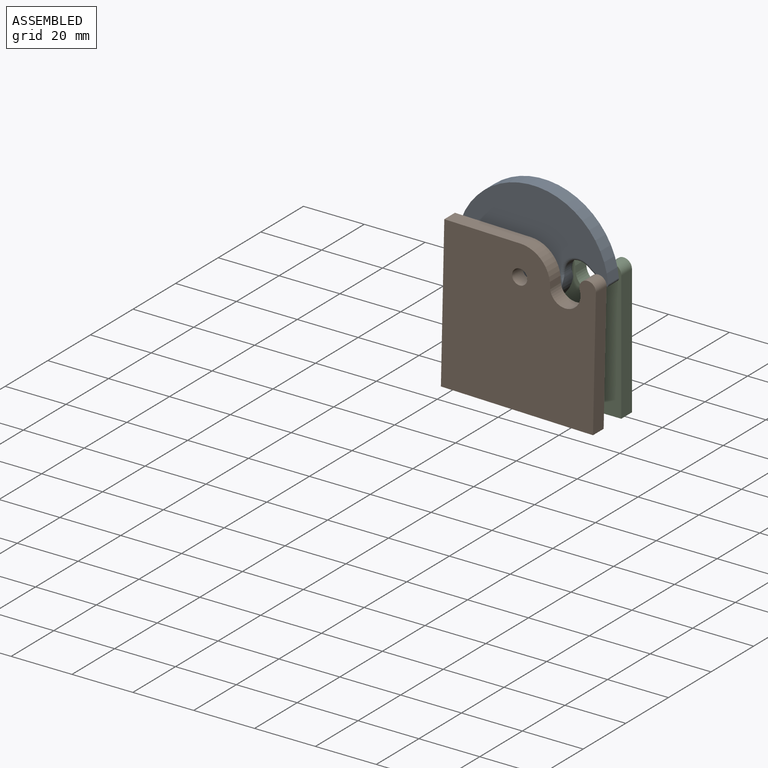
[diagram: assembled view]
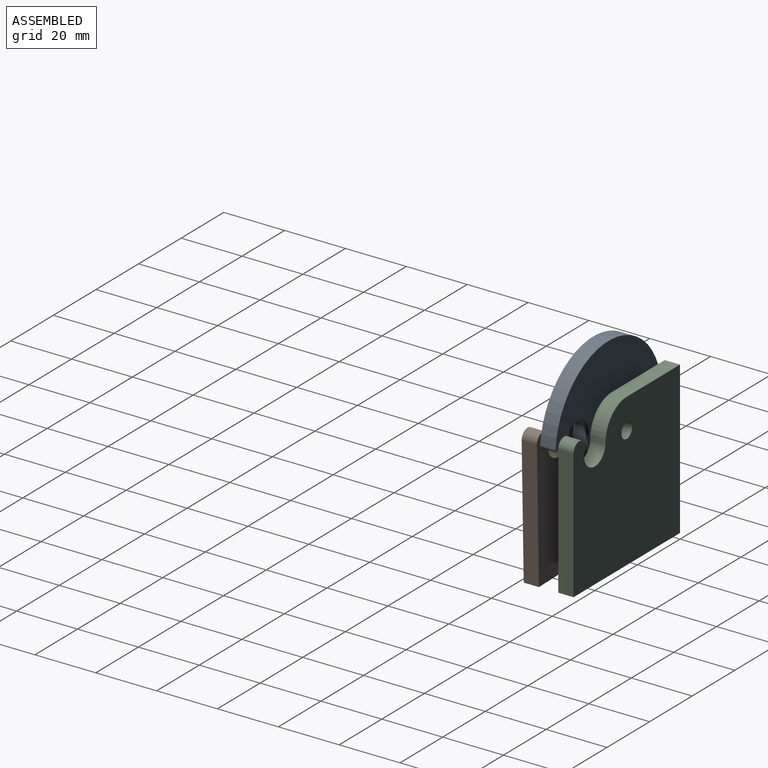
[diagram: assembled view, second angle]
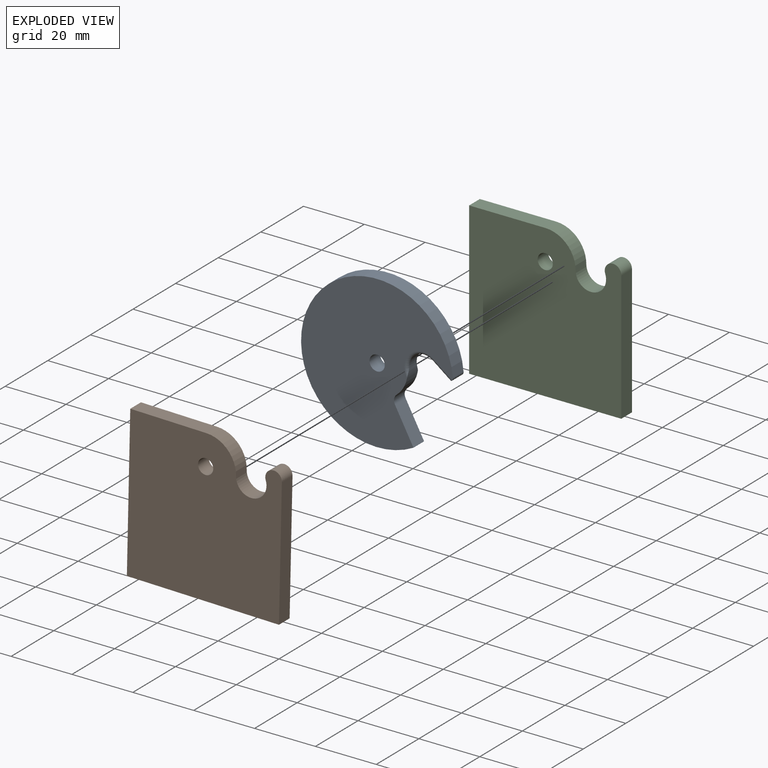
[diagram: exploded view]
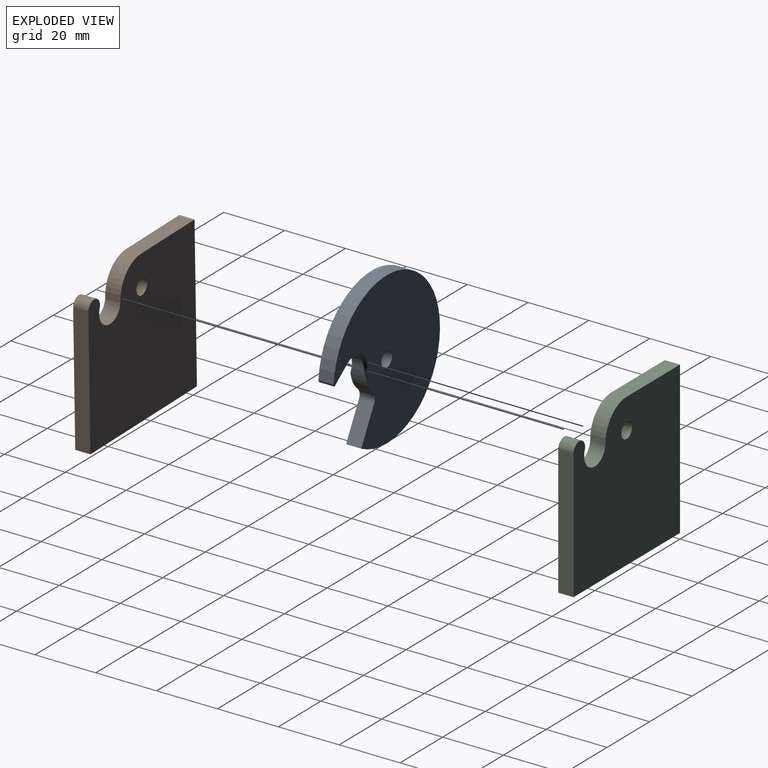
[diagram: exploded view, second angle]
ASSEMBLY  parts=3 mates=2
PART A: 14 faces, bbox 50x5x50 mm
  f0: plane 11.69x5.1mm, normal (-0.4,0,0.92), area 63.8mm2, adj f1,f6,f8,f9
  f1: cylinder r=2.5mm len=5mm, axis (0,1,0), area 17.1mm2, adj f0,f2,f8,f9
  f2: cylinder r=10mm len=8.18mm, axis (0,1,0), area 45.8mm2, adj f1,f3,f8,f9,f10,f12
  f3: cylinder r=5mm len=8.33mm, axis (0,1,0), area 34.5mm2, adj f2,f4,f10,f12
  f4: plane 5x4.47mm, normal (0.75,0,-0.67), area 20.1mm2, adj f3,f5,f11,f13
  f5: cylinder r=1mm len=5mm, axis (0,1,0), area 10.4mm2, adj f4,f6,f8,f9,f11,f13
  f6: cylinder r=25mm len=50mm, axis (0,1,0), area 640.5mm2, adj f0,f5,f8,f9
  f7: cylinder r=2.5mm len=5mm, axis (0,1,0), area 78.5mm2, adj f8,f9
  f8: plane 50x50mm, normal (0,-1,0), area 1577.5mm2, adj f0,f1,f2,f5,f6,f7,f12,f13
  f9: plane 50x50mm, normal (0,1,0), area 1577.5mm2, adj f0,f1,f2,f5,f6,f7,f10,f11
  f10: torus R=6mm, axis (0,-1,0), area 21.6mm2, adj f2,f3,f9,f11
  f11: cylinder r=1mm len=6.41mm, axis (0.67,0,0.75), area 11.5mm2, adj f4,f5,f9,f10
  f12: torus R=6mm, axis (0,-1,0), area 21.6mm2, adj f2,f3,f8,f13
  f13: cylinder r=1mm len=6.41mm, axis (-0.67,0,-0.75), area 11.5mm2, adj f4,f5,f8,f12
PART B: 10 faces, bbox 50x5x50 mm
  f0: plane 50x5mm, normal (0,0,-1), area 250mm2, adj f1,f6,f8,f9
  f1: plane 42.59x5mm, normal (1,0,0), area 213mm2, adj f0,f2,f8,f9
  f2: cylinder r=2.72mm len=5.45mm, axis (0,1,0), area 47.5mm2, adj f1,f3,f8,f9
  f3: cylinder r=5mm len=10mm, axis (0,1,0), area 87.1mm2, adj f2,f4,f8,f9
  f4: cylinder r=10mm len=10mm, axis (0,1,0), area 78.5mm2, adj f3,f5,f8,f9
  f5: plane 25x5mm, normal (0,0,1), area 125mm2, adj f4,f6,f8,f9
  f6: plane 50x5mm, normal (-1,0,0), area 250mm2, adj f0,f5,f8,f9
  f7: cylinder r=2.5mm len=5mm, axis (0,1,0), area 78.5mm2, adj f8,f9
  f8: plane 50x50mm, normal (0,-1,0), area 2294.8mm2, adj f0,f1,f2,f3,f4,f5,f6,f7
  f9: plane 50x50mm, normal (0,1,0), area 2294.8mm2, adj f0,f1,f2,f3,f4,f5,f6,f7
PART C: same geometry as B
PLACE A rot(axis=(0,1,0),85.1deg) t=(25,-8.5,40)mm
PLACE B rot(axis=(0,1,0),1.3deg) t=(25,-12,40)mm
PLACE C t=(25,0,40)mm fixed
MATE revolute C.f4 <-> A.f7  axis (0,-1,0) through (25,-5,40)mm
MATE revolute A.f7 <-> B.f7  axis (0,1,0) through (25,-11,40)mm
